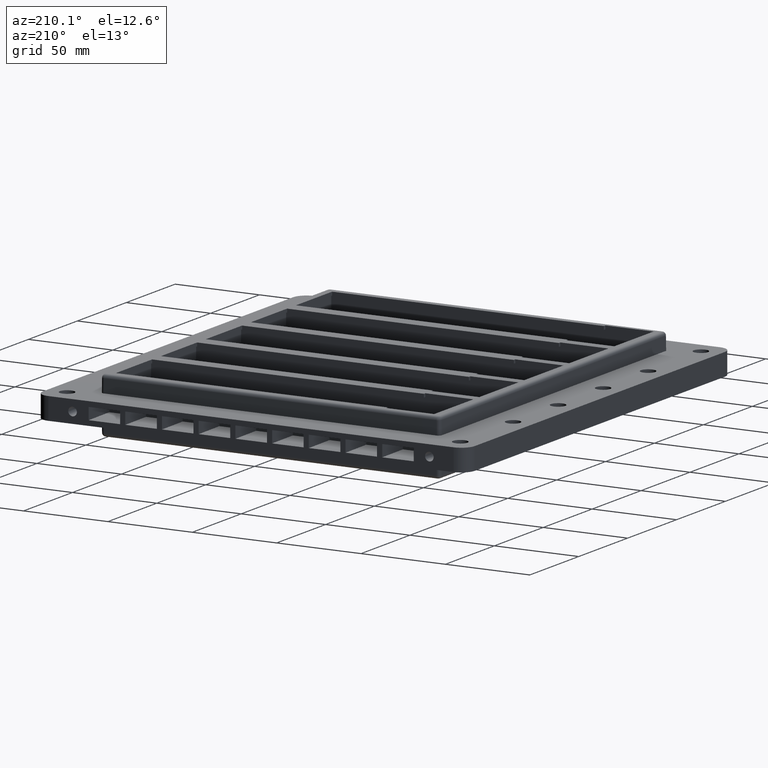
[diagram: clean part render]
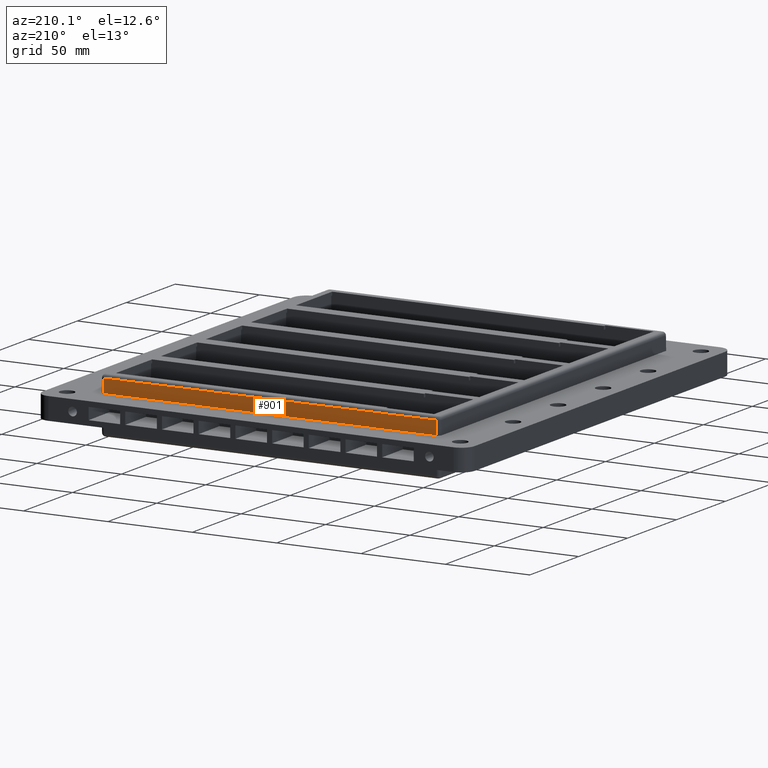
[diagram: same view with one face highlighted and labeled with its STEP entity id]
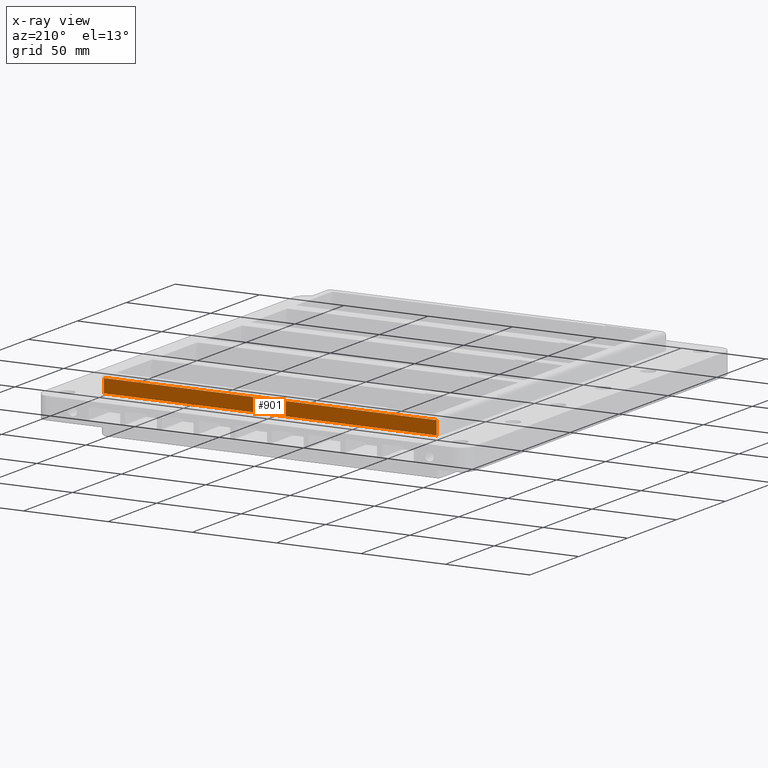
[diagram: x-ray of the same camera — body ghosted, the highlighted face saturated]
A machine part, auxiliary view. The second image highlights one B-rep face of the part: STEP entity #901.
The next image is the same camera in x-ray: the body ghosted, the highlighted face saturated — about 0% of this face is hidden behind the body in this view.
In plain terms, the highlighted planar face has unit normal (-0, 1, 0.0087).
Its self-contained STEP definition (entity closure, byte-faithful):
#901=ADVANCED_FACE('',(#1593),#1251,.T.);
#1251=PLANE('',#8182);
#1593=FACE_OUTER_BOUND('',#2054,.T.);
#2054=EDGE_LOOP('',(#3614,#3615,#3616,#3617));
#3614=ORIENTED_EDGE('',*,*,#5747,.T.);
#3615=ORIENTED_EDGE('',*,*,#5753,.F.);
#3616=ORIENTED_EDGE('',*,*,#5754,.F.);
#3617=ORIENTED_EDGE('',*,*,#5750,.T.);
#4801=VERTEX_POINT('',#11884);
#4820=VERTEX_POINT('',#11946);
#4822=VERTEX_POINT('',#11954);
#4824=VERTEX_POINT('',#11963);
#5747=EDGE_CURVE('',#4801,#4820,#6655,.T.);
#5750=EDGE_CURVE('',#4822,#4801,#6656,.T.);
#5753=EDGE_CURVE('',#4824,#4820,#6658,.T.);
#5754=EDGE_CURVE('',#4822,#4824,#6659,.T.);
#6655=LINE('',#11947,#7501);
#6656=LINE('',#11953,#7502);
#6658=LINE('',#11962,#7504);
#6659=LINE('',#11964,#7505);
#7501=VECTOR('',#9769,1.);
#7502=VECTOR('',#9778,1.);
#7504=VECTOR('',#9782,1.);
#7505=VECTOR('',#9783,1.);
#8182=AXIS2_PLACEMENT_3D('',#11965,#9784,#9785);
#9769=DIRECTION('',(1.,1.37905448783126E-16,1.20348261915561E-18));
#9778=DIRECTION('',(0.00872620324392038,-0.00872620324394418,0.999923850477571));
#9782=DIRECTION('',(-0.008726203243944,-0.008726203243944,0.99992385047757));
#9783=DIRECTION('',(1.,0.,0.));
#9784=DIRECTION('',(-1.379107E-16,0.999961923064171,0.00872653549837401));
#9785=DIRECTION('',(0.,0.00872653549837401,-0.999961923064171));
#11884=CARTESIAN_POINT('',(-108.51737757881,1.26730142493846,31.0174530709968));
#11946=CARTESIAN_POINT('',(88.5173775788105,1.26730142493854,31.0174530709968));
#11947=CARTESIAN_POINT('',(-110.5,1.26730142493853,31.0174530709968));
#11953=CARTESIAN_POINT('',(-108.587344831779,1.33726867790773,23.));
#11954=CARTESIAN_POINT('',(-108.587344831779,1.33726867790766,23.));
#11962=CARTESIAN_POINT('',(88.7820523812345,1.53197622736292,0.688724737942236));
#11963=CARTESIAN_POINT('',(88.5873448317793,1.3372686779077,23.));
#11964=CARTESIAN_POINT('',(70.2377923714441,1.33726867790768,23.));
#11965=CARTESIAN_POINT('',(-110.5,1.53797567144648,0.001256538882347));